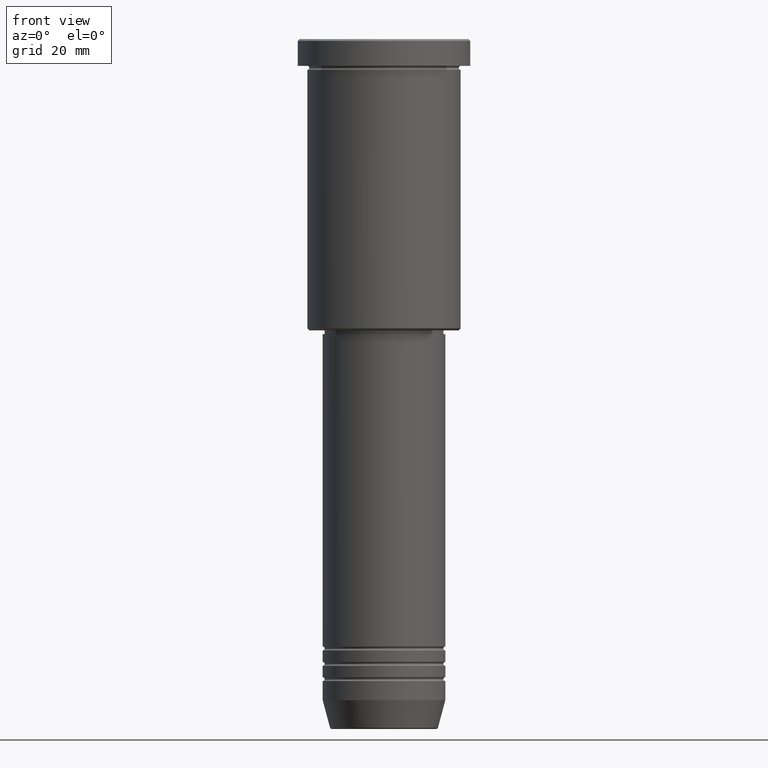
[diagram: clean part render]
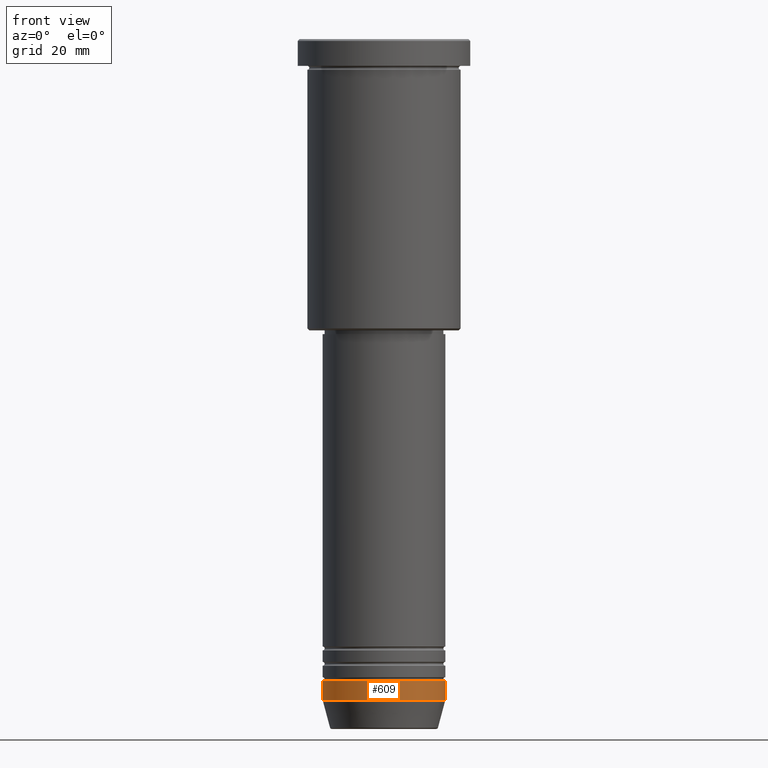
[diagram: same view with one face highlighted and labeled with its STEP entity id]
A machine part, front view. The second image highlights one B-rep face of the part: STEP entity #609.
In plain terms, the highlighted cylindrical surface (partial cylindrical patch) has radius 16 mm, axis along (-0, -0, 1).
Its self-contained STEP definition (entity closure, byte-faithful):
#15 = AXIS2_PLACEMENT_3D ( 'NONE', #1043, #395, #574 ) ;
#27 = CARTESIAN_POINT ( 'NONE',  ( -16.00000000000000000, 1.959434878635765131E-15, 0.000000000000000000 ) ) ;
#71 = CARTESIAN_POINT ( 'NONE',  ( 0.000000000000000000, 0.000000000000000000, -172.5000000000000284 ) ) ;
#83 = EDGE_LOOP ( 'NONE', ( #896, #558, #571, #119 ) ) ;
#85 = VERTEX_POINT ( 'NONE', #189 ) ;
#93 = LINE ( 'NONE', #447, #1103 ) ;
#119 = ORIENTED_EDGE ( 'NONE', *, *, #890, .F. ) ;
#122 = CARTESIAN_POINT ( 'NONE',  ( -16.00000000000000000, 1.959434878635765131E-15, -167.5000000000000000 ) ) ;
#153 = AXIS2_PLACEMENT_3D ( 'NONE', #454, #369, #718 ) ;
#173 = CIRCLE ( 'NONE', #1144, 16.00000000000000000 ) ;
#178 = CARTESIAN_POINT ( 'NONE',  ( 16.00000000000000000, 0.000000000000000000, -172.5000000000000284 ) ) ;
#189 = CARTESIAN_POINT ( 'NONE',  ( -16.00000000000000000, 1.959434878635765131E-15, -172.5000000000000284 ) ) ;
#369 = DIRECTION ( 'NONE',  ( -0.000000000000000000, -0.000000000000000000, 1.000000000000000000 ) ) ;
#384 = DIRECTION ( 'NONE',  ( -0.000000000000000000, -0.000000000000000000, 1.000000000000000000 ) ) ;
#395 = DIRECTION ( 'NONE',  ( -0.000000000000000000, -0.000000000000000000, 1.000000000000000000 ) ) ;
#424 = DIRECTION ( 'NONE',  ( 1.000000000000000000, 0.000000000000000000, 0.000000000000000000 ) ) ;
#447 = CARTESIAN_POINT ( 'NONE',  ( 16.00000000000000000, 0.000000000000000000, 0.000000000000000000 ) ) ;
#454 = CARTESIAN_POINT ( 'NONE',  ( 0.000000000000000000, 0.000000000000000000, -167.5000000000000000 ) ) ;
#480 = VERTEX_POINT ( 'NONE', #178 ) ;
#558 = ORIENTED_EDGE ( 'NONE', *, *, #733, .T. ) ;
#560 = LINE ( 'NONE', #27, #1049 ) ;
#571 = ORIENTED_EDGE ( 'NONE', *, *, #962, .T. ) ;
#574 = DIRECTION ( 'NONE',  ( 1.000000000000000000, 0.000000000000000000, 0.000000000000000000 ) ) ;
#598 = DIRECTION ( 'NONE',  ( -0.000000000000000000, -0.000000000000000000, 1.000000000000000000 ) ) ;
#604 = EDGE_CURVE ( 'NONE', #85, #620, #560, .T. ) ;
#608 = VERTEX_POINT ( 'NONE', #937 ) ;
#609 = ADVANCED_FACE ( 'NONE', ( #669 ), #674, .T. ) ;
#620 = VERTEX_POINT ( 'NONE', #122 ) ;
#669 = FACE_OUTER_BOUND ( 'NONE', #83, .T. ) ;
#674 = CYLINDRICAL_SURFACE ( 'NONE', #15, 16.00000000000000000 ) ;
#718 = DIRECTION ( 'NONE',  ( 1.000000000000000000, 0.000000000000000000, 0.000000000000000000 ) ) ;
#733 = EDGE_CURVE ( 'NONE', #85, #480, #173, .T. ) ;
#805 = CIRCLE ( 'NONE', #153, 16.00000000000000000 ) ;
#890 = EDGE_CURVE ( 'NONE', #620, #608, #805, .T. ) ;
#896 = ORIENTED_EDGE ( 'NONE', *, *, #604, .F. ) ;
#937 = CARTESIAN_POINT ( 'NONE',  ( 16.00000000000000000, 0.000000000000000000, -167.5000000000000000 ) ) ;
#962 = EDGE_CURVE ( 'NONE', #480, #608, #93, .T. ) ;
#1038 = DIRECTION ( 'NONE',  ( -0.000000000000000000, -0.000000000000000000, 1.000000000000000000 ) ) ;
#1043 = CARTESIAN_POINT ( 'NONE',  ( 0.000000000000000000, 0.000000000000000000, 0.000000000000000000 ) ) ;
#1049 = VECTOR ( 'NONE', #384, 1000.000000000000000 ) ;
#1103 = VECTOR ( 'NONE', #1038, 1000.000000000000000 ) ;
#1144 = AXIS2_PLACEMENT_3D ( 'NONE', #71, #598, #424 ) ;